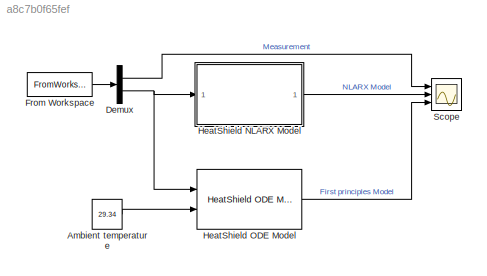
MODEL slx_a8c7b0f65fef
KIND model
CONFIG AbsTol = auto
CONFIG EnableMultiTasking = off
CONFIG FixedStep = auto
CONFIG MaxStep = auto
CONFIG MinStep = auto
CONFIG RelTol = 1e-3
CONFIG SampleTimeConstraint = Unconstrained
CONFIG Solver = VariableStepAuto
CONFIG SolverName = VariableStepAuto
CONFIG StartTime = 0.0
CONFIG StopTime = 16000
WORKSPACE source: MAT-file member
WORKSPACE MCOS: class17 (value not decoded)
BLOCK [Constant] Ambient temperature
  Value = 29.34
BLOCK [Demux] Demux
  DisplayOption = bar
  Outputs = 2
  Ports = [1, 2]
BLOCK [FromWorkspace] From Workspace
  OpenFcn = load resultIDSimulink
  SampleTime = 2
  VariableName = resultIDSimulink
  ZeroCross = on
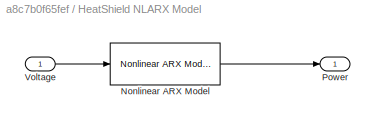
BLOCK [SubSystem] HeatShield NLARX Model
  Ports = [1, 1]
  RequestExecContextInheritance = off
BLOCK [Reference] HeatShield NLARX Model/Nonlinear ARX Model  REF=slident/Models/Nonlinear ARX Model  (lib defined in mdl_f7d4911ca73a)
  Ports = [1, 1]
  SourceBlock = slident/Models/Nonlinear ARX Model
  SourceProductBaseCode = ID
  SourceProductName = System Identification Toolbox
  SourceType = Nonlinear ARX Model
BLOCK [Outport] HeatShield NLARX Model/Power
  IconDisplay = Port number
BLOCK [Inport] HeatShield NLARX Model/Voltage
  IconDisplay = Port number
BLOCK [Reference] HeatShield ODE Model  REF=HeatLibrary/HeatShield ODE Model
  Ports = [2, 1]
  SourceBlock = HeatLibrary/HeatShield ODE Model
  SourceProductName = AutomationShield
BLOCK [Scope] Scope
  Floating = off
  NumInputPorts = 3
  Ports = [3]
  ScopeSpecificationString = Simulink.scopes.TimeScopeBlockCfg('CurrentConfiguration', extmgr.ConfigurationSet(extmgr.Configuration('Core','General UI',true),extmgr.Configuration('Core','Source UI',true),extmgr.Configuration('Sources','WiredSimulink',true),extmgr.Configuration('Visuals','Time Domain',true,'SerializedDisplays',{struct('MinYLimReal','-12.5','MaxYLimReal','112.5','YLabelReal','','MinYLimMag','0.00000','MaxYLimMa...<+1402ch>
LINE Ambient temperature:1 -> HeatShield ODE Model:2
LINE Demux:1 -> Scope:1
NET Demux:2 -> HeatShield NLARX Model:1, HeatShield ODE Model:1
LINE From Workspace:1 -> Demux:1
LINE HeatShield NLARX Model/Nonlinear ARX Model:1 -> HeatShield NLARX Model/Power:1
LINE HeatShield NLARX Model/Voltage:1 -> HeatShield NLARX Model/Nonlinear ARX Model:1
LINE HeatShield NLARX Model:1 -> Scope:2
LINE HeatShield ODE Model:1 -> Scope:3
note: NET lines group one-source signal fan-out (src -> all destinations, sorted); 1:1 wires keep LINE
